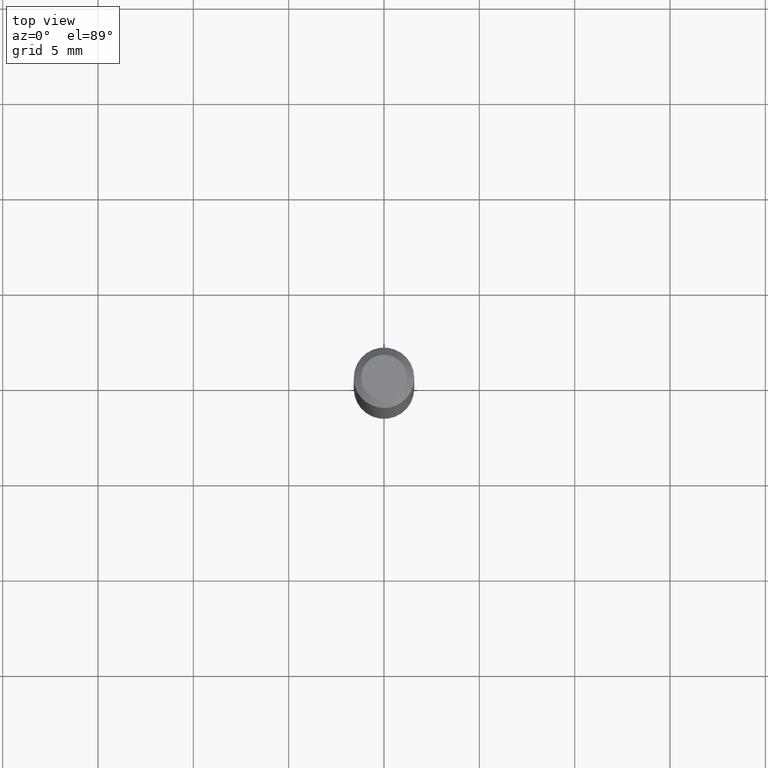
[diagram: clean part render]
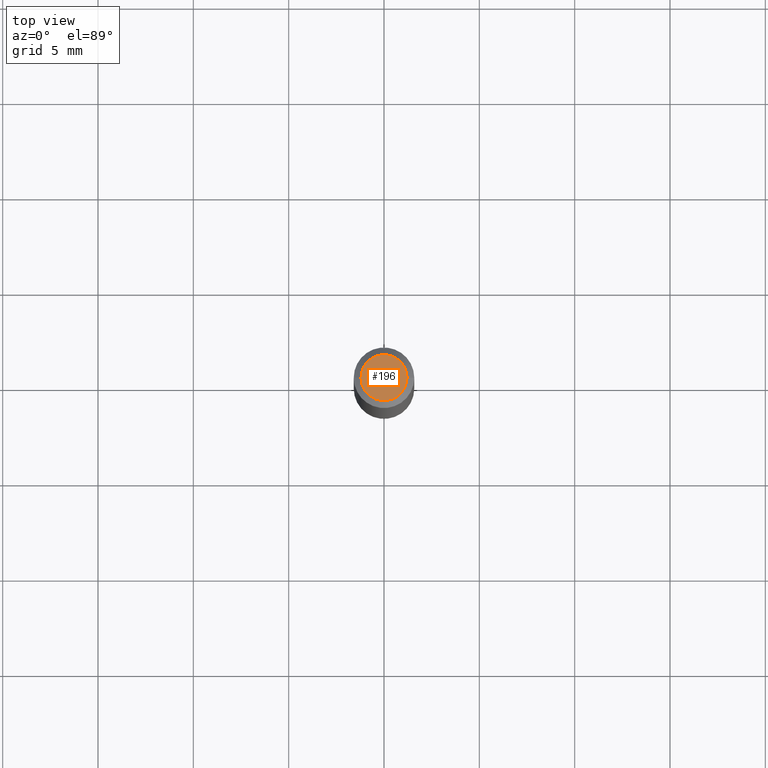
[diagram: same view with one face highlighted and labeled with its STEP entity id]
A machine part, top view. The second image highlights one B-rep face of the part: STEP entity #196.
In plain terms, the highlighted planar face has unit normal (0, -0, -1).
Its self-contained STEP definition (entity closure, byte-faithful):
#22 = ORIENTED_EDGE ( 'NONE', *, *, #238, .T. ) ;
#27 = DIRECTION ( 'NONE',  ( 1.000000000000000000, -6.982962677686266711E-15, 4.852736867747365086E-29 ) ) ;
#45 = EDGE_LOOP ( 'NONE', ( #22, #125 ) ) ;
#65 = EDGE_CURVE ( 'NONE', #411, #334, #326, .T. ) ;
#96 = AXIS2_PLACEMENT_3D ( 'NONE', #141, #454, #459 ) ;
#110 = FACE_OUTER_BOUND ( 'NONE', #45, .T. ) ;
#111 = CARTESIAN_POINT ( 'NONE',  ( -6.680649051745406845E-45, 9.538196290434862081E-31, 2.731847993664263218E-16 ) ) ;
#125 = ORIENTED_EDGE ( 'NONE', *, *, #65, .T. ) ;
#126 = AXIS2_PLACEMENT_3D ( 'NONE', #466, #469, #194 ) ;
#141 = CARTESIAN_POINT ( 'NONE',  ( -6.680649051745406845E-45, 9.538196290434862081E-31, 2.731847993664263218E-16 ) ) ;
#168 = CARTESIAN_POINT ( 'NONE',  ( -0.04750000000000000749, 3.578768372314221353E-16, 2.731847993664239060E-16 ) ) ;
#194 = DIRECTION ( 'NONE',  ( -1.000000000000000000, 6.982962677686265922E-15, -4.876176775795935793E-29 ) ) ;
#196 = ADVANCED_FACE ( 'NONE', ( #110 ), #427, .F. ) ;
#238 = EDGE_CURVE ( 'NONE', #334, #411, #426, .T. ) ;
#325 = CARTESIAN_POINT ( 'NONE',  ( 0.04750000000000000749, -4.035134999187568762E-16, 2.731847993664288856E-16 ) ) ;
#326 = CIRCLE ( 'NONE', #96, 0.04750000000000000749 ) ;
#334 = VERTEX_POINT ( 'NONE', #168 ) ;
#392 = DIRECTION ( 'NONE',  ( -2.445468806185136597E-29, 3.491481338843145583E-15, 1.000000000000000000 ) ) ;
#411 = VERTEX_POINT ( 'NONE', #325 ) ;
#426 = CIRCLE ( 'NONE', #473, 0.04750000000000000749 ) ;
#427 = PLANE ( 'NONE',  #126 ) ;
#454 = DIRECTION ( 'NONE',  ( -2.445468806185136597E-29, 3.491481338843145583E-15, 1.000000000000000000 ) ) ;
#459 = DIRECTION ( 'NONE',  ( 1.000000000000000000, -6.982962677686266711E-15, 4.852736867747365086E-29 ) ) ;
#466 = CARTESIAN_POINT ( 'NONE',  ( 3.316907271900976589E-16, 0.04750000000000000749, -2.925296391183627249E-17 ) ) ;
#469 = DIRECTION ( 'NONE',  ( 2.438088387897960049E-29, -3.491481338843145188E-15, -1.000000000000000000 ) ) ;
#473 = AXIS2_PLACEMENT_3D ( 'NONE', #111, #392, #27 ) ;